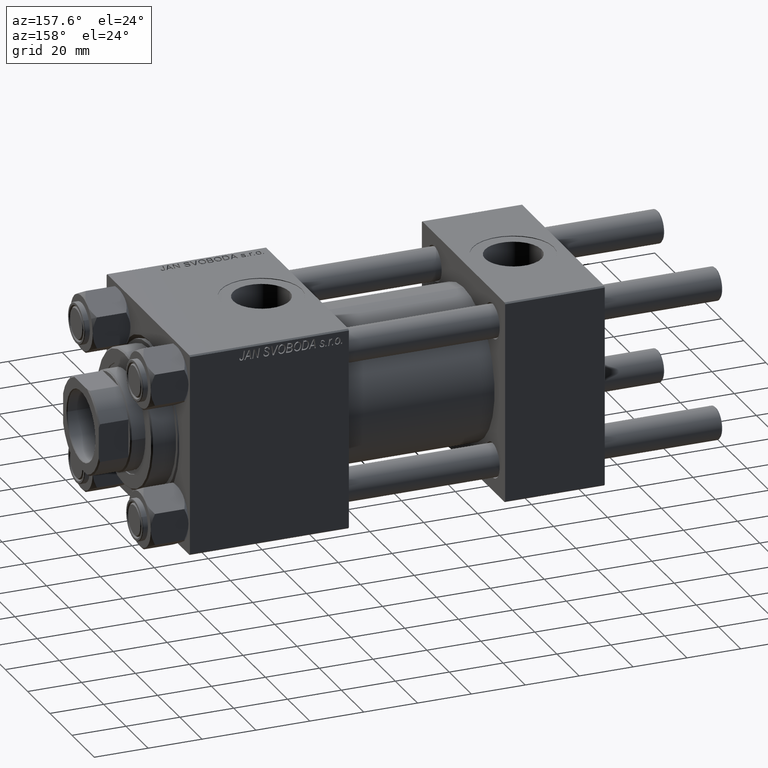
[diagram: clean part render]
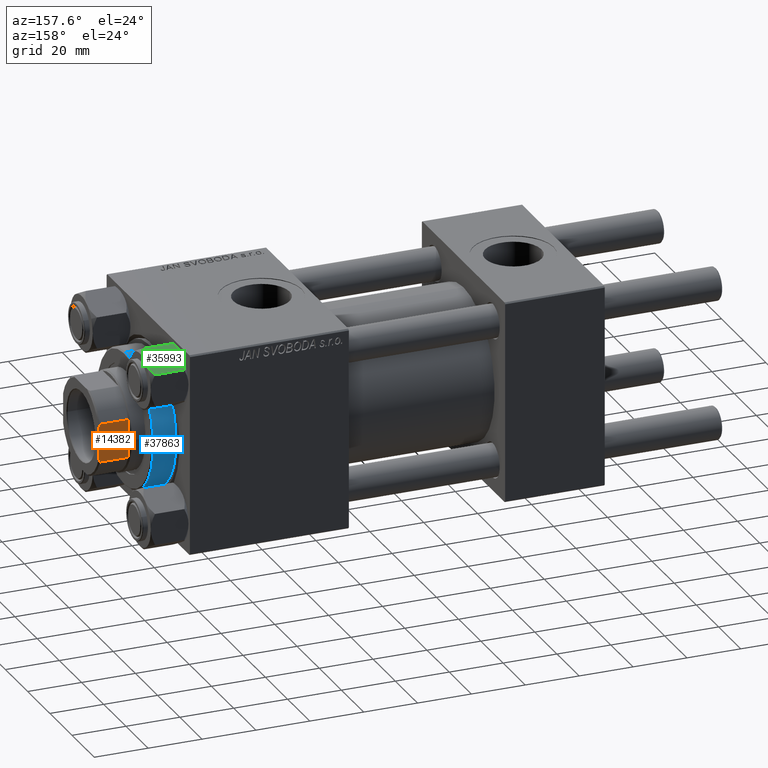
[diagram: same view with three faces highlighted in distinct colors, each labeled with its STEP entity id]
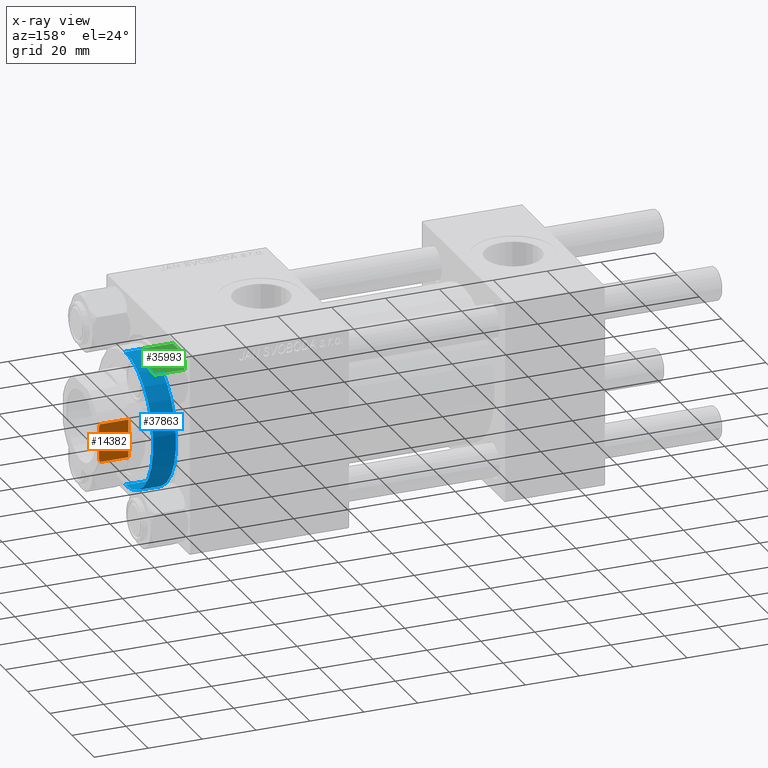
[diagram: x-ray of the same camera — body ghosted, the three highlighted faces saturated]
A machine part, auxiliary view with three faces highlighted in distinct colors.
The next image is the same camera in x-ray (body ghosted, the three faces saturated) — at least one of them is partly hidden behind the body in this view.
Their STEP definitions:

[orange] entity #14382 — the highlighted planar face has unit normal (-0, -1, -0).
#198 = DIRECTION ( 'NONE',  ( 0.000000000000000000, -1.000000000000000000, 0.000000000000000000 ) ) ;
#1245 = ORIENTED_EDGE ( 'NONE', *, *, #49039, .F. ) ;
#3132 = VECTOR ( 'NONE', #12706, 1000.000000000000000 ) ;
#4084 = VERTEX_POINT ( 'NONE', #35443 ) ;
#5725 = CARTESIAN_POINT ( 'NONE',  ( -16.00000000000000000, 6.645462757301157097, 141.6795515649600361 ) ) ;
#6185 = FACE_OUTER_BOUND ( 'NONE', #41848, .T. ) ;
#6350 = VERTEX_POINT ( 'NONE', #9192 ) ;
#6418 = AXIS2_PLACEMENT_3D ( 'NONE', #10368, #9330, #42308 ) ;
#7051 = CARTESIAN_POINT ( 'NONE',  ( -16.00000000000000000, -6.197659614356052060, 141.8468915343184165 ) ) ;
#9192 = CARTESIAN_POINT ( 'NONE',  ( -16.00000000000000000, -7.088723439378919799, 131.0000000000000284 ) ) ;
#9330 = DIRECTION ( 'NONE',  ( 1.000000000000000000, 0.000000000000000000, -0.000000000000000000 ) ) ;
#9501 = VERTEX_POINT ( 'NONE', #42598 ) ;
#10368 = CARTESIAN_POINT ( 'NONE',  ( -16.00000000000000000, 16.00000000000000000, 142.0000000000000284 ) ) ;
#11022 = B_SPLINE_CURVE_WITH_KNOTS ( 'NONE', 3,
 ( #45250, #14371, #5725, #26136 ),
 .UNSPECIFIED., .F., .F.,
 ( 4, 4 ),
 ( 8.673617379884035472E-19, 0.001434143729551021944 ),
 .UNSPECIFIED. ) ;
#12706 = DIRECTION ( 'NONE',  ( -0.000000000000000000, -0.000000000000000000, 1.000000000000000000 ) ) ;
#13153 = VECTOR ( 'NONE', #198, 1000.000000000000000 ) ;
#14371 = CARTESIAN_POINT ( 'NONE',  ( -16.00000000000000000, 6.197659614356096469, 141.8468915343184165 ) ) ;
#14382 = ADVANCED_FACE ( 'NONE', ( #6185 ), #29492, .F. ) ;
#14613 = EDGE_CURVE ( 'NONE', #6350, #38825, #36492, .T. ) ;
#17538 = CARTESIAN_POINT ( 'NONE',  ( -15.99999999999999645, 7.088723439378926905, 131.0000000000000284 ) ) ;
#18489 = ORIENTED_EDGE ( 'NONE', *, *, #36903, .T. ) ;
#18746 = ORIENTED_EDGE ( 'NONE', *, *, #20676, .F. ) ;
#18908 = EDGE_CURVE ( 'NONE', #38825, #22247, #43173, .T. ) ;
#19310 = ORIENTED_EDGE ( 'NONE', *, *, #48040, .T. ) ;
#19587 = CARTESIAN_POINT ( 'NONE',  ( -16.00000000000000000, 16.00000000000000000, 142.0000000000000284 ) ) ;
#20043 = CARTESIAN_POINT ( 'NONE',  ( -15.99999999999999645, 7.088723439378923352, -0.001000000000001000089 ) ) ;
#20676 = EDGE_CURVE ( 'NONE', #47562, #4084, #36270, .T. ) ;
#21734 = CARTESIAN_POINT ( 'NONE',  ( -16.00000000000000000, -5.744562646538022399, 142.0000000000000284 ) ) ;
#22247 = VERTEX_POINT ( 'NONE', #21734 ) ;
#22985 = LINE ( 'NONE', #19587, #36885 ) ;
#23266 = CARTESIAN_POINT ( 'NONE',  ( -16.00000000000000000, -5.744562646538022399, 142.0000000000000284 ) ) ;
#23679 = CARTESIAN_POINT ( 'NONE',  ( -16.00000000000000000, -7.088723439378919799, -0.001000000000001000089 ) ) ;
#23932 = DIRECTION ( 'NONE',  ( -0.000000000000000000, -0.000000000000000000, 1.000000000000000000 ) ) ;
#26136 = CARTESIAN_POINT ( 'NONE',  ( -15.99999999999999645, 7.088723439378923352, 141.5000000000000284 ) ) ;
#26934 = CARTESIAN_POINT ( 'NONE',  ( -16.00000000000000000, -6.645462757301120682, 141.6795515649600077 ) ) ;
#27321 = VECTOR ( 'NONE', #23932, 1000.000000000000000 ) ;
#29492 = PLANE ( 'NONE',  #6418 ) ;
#30434 = CARTESIAN_POINT ( 'NONE',  ( -16.00000000000000000, -7.088723439378919799, 141.5000000000000284 ) ) ;
#32150 = CARTESIAN_POINT ( 'NONE',  ( -16.00000000000000000, 16.00000000000000000, 131.0000000000000000 ) ) ;
#32663 = LINE ( 'NONE', #32150, #13153 ) ;
#33126 = ORIENTED_EDGE ( 'NONE', *, *, #14613, .T. ) ;
#35443 = CARTESIAN_POINT ( 'NONE',  ( -15.99999999999999645, 7.088723439378923352, 141.5000000000000284 ) ) ;
#36270 = LINE ( 'NONE', #20043, #3132 ) ;
#36492 = LINE ( 'NONE', #23679, #27321 ) ;
#36885 = VECTOR ( 'NONE', #38971, 1000.000000000000000 ) ;
#36903 = EDGE_CURVE ( 'NONE', #47562, #6350, #32663, .T. ) ;
#38825 = VERTEX_POINT ( 'NONE', #30434 ) ;
#38971 = DIRECTION ( 'NONE',  ( 0.000000000000000000, -1.000000000000000000, 0.000000000000000000 ) ) ;
#41848 = EDGE_LOOP ( 'NONE', ( #33126, #45067, #1245, #19310, #18746, #18489 ) ) ;
#42308 = DIRECTION ( 'NONE',  ( -0.000000000000000000, 0.000000000000000000, -1.000000000000000000 ) ) ;
#42598 = CARTESIAN_POINT ( 'NONE',  ( -16.00000000000000000, 5.744562646538085460, 142.0000000000000284 ) ) ;
#43173 = B_SPLINE_CURVE_WITH_KNOTS ( 'NONE', 3,
 ( #46833, #26934, #7051, #23266 ),
 .UNSPECIFIED., .F., .F.,
 ( 4, 4 ),
 ( 0.000000000000000000, 0.001434143729551075504 ),
 .UNSPECIFIED. ) ;
#45067 = ORIENTED_EDGE ( 'NONE', *, *, #18908, .T. ) ;
#45250 = CARTESIAN_POINT ( 'NONE',  ( -16.00000000000000000, 5.744562646538085460, 142.0000000000000284 ) ) ;
#46833 = CARTESIAN_POINT ( 'NONE',  ( -16.00000000000000000, -7.088723439378919799, 141.5000000000000284 ) ) ;
#47562 = VERTEX_POINT ( 'NONE', #17538 ) ;
#48040 = EDGE_CURVE ( 'NONE', #9501, #4084, #11022, .T. ) ;
#49039 = EDGE_CURVE ( 'NONE', #9501, #22247, #22985, .T. ) ;

[blue] entity #37863 — the highlighted cylindrical surface (partial cylindrical patch) has radius 25 mm, axis along (-1, -0, 0).
#1337 = DIRECTION ( 'NONE',  ( -0.000000000000000000, -0.000000000000000000, -1.000000000000000000 ) ) ;
#3348 = AXIS2_PLACEMENT_3D ( 'NONE', #17443, #45703, #49368 ) ;
#5263 = LINE ( 'NONE', #21249, #6814 ) ;
#5894 = ORIENTED_EDGE ( 'NONE', *, *, #49103, .F. ) ;
#6814 = VECTOR ( 'NONE', #1337, 1000.000000000000000 ) ;
#8583 = CYLINDRICAL_SURFACE ( 'NONE', #11509, 25.00000000000000000 ) ;
#10009 = ORIENTED_EDGE ( 'NONE', *, *, #28187, .T. ) ;
#11462 = CARTESIAN_POINT ( 'NONE',  ( -25.00000000000000000, 0.000000000000000000, 37.69999999999999574 ) ) ;
#11509 = AXIS2_PLACEMENT_3D ( 'NONE', #45211, #20360, #49400 ) ;
#11746 = VERTEX_POINT ( 'NONE', #50218 ) ;
#12565 = ORIENTED_EDGE ( 'NONE', *, *, #50535, .T. ) ;
#14883 = LINE ( 'NONE', #11462, #31014 ) ;
#16821 = CARTESIAN_POINT ( 'NONE',  ( 25.00000000000000000, 3.061616997868383043E-15, 37.20000000000001705 ) ) ;
#17440 = VERTEX_POINT ( 'NONE', #46700 ) ;
#17443 = CARTESIAN_POINT ( 'NONE',  ( 0.000000000000000000, 0.000000000000000000, 28.69999999999999929 ) ) ;
#17521 = CARTESIAN_POINT ( 'NONE',  ( -25.00000000000000000, 0.000000000000000000, 28.69999999999999929 ) ) ;
#18464 = VERTEX_POINT ( 'NONE', #16821 ) ;
#20360 = DIRECTION ( 'NONE',  ( -0.000000000000000000, -0.000000000000000000, -1.000000000000000000 ) ) ;
#21249 = CARTESIAN_POINT ( 'NONE',  ( 25.00000000000000000, 3.061616997868383043E-15, 37.69999999999999574 ) ) ;
#25275 = ORIENTED_EDGE ( 'NONE', *, *, #26379, .T. ) ;
#26379 = EDGE_CURVE ( 'NONE', #17440, #48958, #46826, .T. ) ;
#28187 = EDGE_CURVE ( 'NONE', #18464, #17440, #5263, .T. ) ;
#31014 = VECTOR ( 'NONE', #31891, 1000.000000000000000 ) ;
#31595 = EDGE_LOOP ( 'NONE', ( #12565, #10009, #25275, #5894 ) ) ;
#31891 = DIRECTION ( 'NONE',  ( -0.000000000000000000, -0.000000000000000000, -1.000000000000000000 ) ) ;
#32158 = DIRECTION ( 'NONE',  ( 0.000000000000000000, 0.000000000000000000, -1.000000000000000000 ) ) ;
#34361 = DIRECTION ( 'NONE',  ( 1.000000000000000000, 0.000000000000000000, 0.000000000000000000 ) ) ;
#37863 = ADVANCED_FACE ( 'NONE', ( #48373 ), #8583, .T. ) ;
#43933 = CARTESIAN_POINT ( 'NONE',  ( 0.000000000000000000, 0.000000000000000000, 37.20000000000001705 ) ) ;
#45211 = CARTESIAN_POINT ( 'NONE',  ( 0.000000000000000000, 0.000000000000000000, 37.69999999999999574 ) ) ;
#45703 = DIRECTION ( 'NONE',  ( 0.000000000000000000, 0.000000000000000000, 1.000000000000000000 ) ) ;
#46700 = CARTESIAN_POINT ( 'NONE',  ( 25.00000000000000000, 3.061616997868383043E-15, 28.69999999999999929 ) ) ;
#46826 = CIRCLE ( 'NONE', #3348, 25.00000000000000000 ) ;
#46923 = CIRCLE ( 'NONE', #47790, 25.00000000000000000 ) ;
#47790 = AXIS2_PLACEMENT_3D ( 'NONE', #43933, #32158, #34361 ) ;
#48373 = FACE_OUTER_BOUND ( 'NONE', #31595, .T. ) ;
#48958 = VERTEX_POINT ( 'NONE', #17521 ) ;
#49103 = EDGE_CURVE ( 'NONE', #11746, #48958, #14883, .T. ) ;
#49368 = DIRECTION ( 'NONE',  ( 1.000000000000000000, 0.000000000000000000, 0.000000000000000000 ) ) ;
#49400 = DIRECTION ( 'NONE',  ( -1.000000000000000000, 0.000000000000000000, 0.000000000000000000 ) ) ;
#50218 = CARTESIAN_POINT ( 'NONE',  ( -25.00000000000000000, 0.000000000000000000, 37.20000000000001705 ) ) ;
#50535 = EDGE_CURVE ( 'NONE', #11746, #18464, #46923, .T. ) ;

[green] entity #35993 — the highlighted planar face has unit normal (-0, -0.5, -0.866).
#974 = CARTESIAN_POINT ( 'NONE',  ( 4.908816193182378385, 10.06321519197518199, -12.89380709538398406 ) ) ;
#2855 = EDGE_CURVE ( 'NONE', #45167, #41879, #36820, .T. ) ;
#4052 = VECTOR ( 'NONE', #47410, 1000.000000000000000 ) ;
#4437 = CARTESIAN_POINT ( 'NONE',  ( -5.810000000000003162, 10.06321519197517667, -1.556784808024824107 ) ) ;
#4570 = CARTESIAN_POINT ( 'NONE',  ( 5.359707691559670195, 10.06321519197518199, -1.331638653804663619 ) ) ;
#4660 = EDGE_CURVE ( 'NONE', #47831, #10297, #42349, .T. ) ;
#4700 = CARTESIAN_POINT ( 'NONE',  ( -3.960942496020607884, 10.06321519197517844, -0.7115728323610508443 ) ) ;
#4745 = DIRECTION ( 'NONE',  ( 5.971509383741162381E-16, -1.000000000000000000, 0.000000000000000000 ) ) ;
#4802 = EDGE_CURVE ( 'NONE', #10297, #5793, #29267, .T. ) ;
#4898 = CARTESIAN_POINT ( 'NONE',  ( 3.960942496020599002, 10.06321519197518199, -13.28842716763894671 ) ) ;
#5793 = VERTEX_POINT ( 'NONE', #48378 ) ;
#6486 = ORIENTED_EDGE ( 'NONE', *, *, #4660, .F. ) ;
#6943 = CARTESIAN_POINT ( 'NONE',  ( -6.009258394948640858E-15, 10.06321519197518022, 0.000000000000000000 ) ) ;
#7804 = CARTESIAN_POINT ( 'NONE',  ( -2.013954290287971460, 10.06321519197518022, -13.84298883202399466 ) ) ;
#10297 = VERTEX_POINT ( 'NONE', #51226 ) ;
#11215 = DIRECTION ( 'NONE',  ( -0.000000000000000000, -0.000000000000000000, 1.000000000000000000 ) ) ;
#11274 = VERTEX_POINT ( 'NONE', #46598 ) ;
#11474 = CARTESIAN_POINT ( 'NONE',  ( -5.359707691559678189, 10.06321519197518022, -12.66836134619534171 ) ) ;
#12244 = CARTESIAN_POINT ( 'NONE',  ( 0.2543996698847451055, 10.06321519197518199, -13.99999999999999289 ) ) ;
#12767 = CARTESIAN_POINT ( 'NONE',  ( 0.5112014849988854026, 10.06321519197518022, -13.99019602057108003 ) ) ;
#15953 = CARTESIAN_POINT ( 'NONE',  ( -5.810000000000004050, 10.06321519197517667, -12.44321519197517745 ) ) ;
#16360 = CARTESIAN_POINT ( 'NONE',  ( -6.009258394948640858E-15, 10.06321519197518022, 0.000000000000000000 ) ) ;
#16750 = CARTESIAN_POINT ( 'NONE',  ( -4.908816193182384602, 10.06321519197518022, -1.106192904616017048 ) ) ;
#16949 = CARTESIAN_POINT ( 'NONE',  ( 5.809999999999994280, 10.06321519197518377, -12.44321519197517389 ) ) ;
#17057 = DIRECTION ( 'NONE',  ( 1.000000000000000000, 5.971509383741162381E-16, 0.000000000000000000 ) ) ;
#17156 = EDGE_LOOP ( 'NONE', ( #6486, #28159, #29326, #51396, #22588, #35429 ) ) ;
#18822 = CARTESIAN_POINT ( 'NONE',  ( -5.810000000000004050, 10.06321519197517667, -12.44321519197517745 ) ) ;
#19338 = CARTESIAN_POINT ( 'NONE',  ( -3.958929922320423067, 10.06321519197517489, -13.25786014976459626 ) ) ;
#19592 = LINE ( 'NONE', #35050, #26851 ) ;
#20548 = CARTESIAN_POINT ( 'NONE',  ( 2.013954290287958138, 10.06321519197518377, -0.1570111679760076706 ) ) ;
#20729 = PLANE ( 'NONE',  #41283 ) ;
#22588 = ORIENTED_EDGE ( 'NONE', *, *, #49658, .F. ) ;
#23876 = CARTESIAN_POINT ( 'NONE',  ( -5.810000000000003162, 10.06321519197517667, -14.00000000000000000 ) ) ;
#24576 = CARTESIAN_POINT ( 'NONE',  ( 5.809999999999995168, 10.06321519197518377, -1.556784808024826106 ) ) ;
#24596 = CARTESIAN_POINT ( 'NONE',  ( -0.2543996698847555971, 10.06321519197517844, -8.687169907040107433E-15 ) ) ;
#24792 = CARTESIAN_POINT ( 'NONE',  ( 1.772424303831120707, 10.06321519197518022, -13.86611290782775541 ) ) ;
#26851 = VECTOR ( 'NONE', #11215, 1000.000000000000000 ) ;
#27427 = CARTESIAN_POINT ( 'NONE',  ( -4.900668367960797411, 10.06321519197517667, -12.87844331629021966 ) ) ;
#28159 = ORIENTED_EDGE ( 'NONE', *, *, #43727, .T. ) ;
#28529 = CARTESIAN_POINT ( 'NONE',  ( -1.772424303831134917, 10.06321519197518022, -0.1338870921722490892 ) ) ;
#28579 = FACE_OUTER_BOUND ( 'NONE', #17156, .T. ) ;
#29267 = B_SPLINE_CURVE_WITH_KNOTS ( 'NONE', 3,
 ( #48117, #12244, #12767, #44693, #24792, #40773, #4898, #974, #16949 ),
 .UNSPECIFIED., .F., .F.,
 ( 4, 2, 1, 2, 4 ),
 ( 0.02074012592819902273, 0.02149589804477578664, 0.02225167016135255055, 0.02376321439450608183, 0.02678630286081314094 ),
 .UNSPECIFIED. ) ;
#29326 = ORIENTED_EDGE ( 'NONE', *, *, #42599, .F. ) ;
#31637 = CARTESIAN_POINT ( 'NONE',  ( -1.020132157807628781, 10.06321519197518022, -13.99999999999999467 ) ) ;
#32469 = CARTESIAN_POINT ( 'NONE',  ( -1.018274738099091303, 10.06321519197518022, -0.04822742080071992093 ) ) ;
#33196 = CARTESIAN_POINT ( 'NONE',  ( -5.810000000000003162, 10.06321519197517667, -14.00000000000000000 ) ) ;
#35050 = CARTESIAN_POINT ( 'NONE',  ( 5.809999999999995168, 10.06321519197518377, -14.00000000000000000 ) ) ;
#35429 = ORIENTED_EDGE ( 'NONE', *, *, #4802, .F. ) ;
#35993 = ADVANCED_FACE ( 'NONE', ( #28579 ), #20729, .F. ) ;
#36517 = CARTESIAN_POINT ( 'NONE',  ( 1.020132157807618345, 10.06321519197518022, -8.626183534837794653E-15 ) ) ;
#36820 = B_SPLINE_CURVE_WITH_KNOTS ( 'NONE', 3,
 ( #47792, #4570, #51711, #39686, #48051, #20548, #36517, #16360 ),
 .UNSPECIFIED., .F., .F.,
 ( 4, 2, 2, 4 ),
 ( 0.01467889604968878464, 0.01619420351931634416, 0.01770951098894390369, 0.02074012592819901926 ),
 .UNSPECIFIED. ) ;
#39686 = CARTESIAN_POINT ( 'NONE',  ( 3.958929922320414185, 10.06321519197518377, -0.7421398502354088489 ) ) ;
#40773 = CARTESIAN_POINT ( 'NONE',  ( 2.508586450168036386, 10.06321519197518199, -13.70242473679676287 ) ) ;
#41283 = AXIS2_PLACEMENT_3D ( 'NONE', #23876, #4745, #17057 ) ;
#41879 = VERTEX_POINT ( 'NONE', #6943 ) ;
#42349 = B_SPLINE_CURVE_WITH_KNOTS ( 'NONE', 3,
 ( #18822, #11474, #27427, #19338, #43415, #7804, #31637, #43927 ),
 .UNSPECIFIED., .F., .F.,
 ( 4, 2, 2, 4 ),
 ( 0.01467889604968878811, 0.01619420351931634763, 0.01770951098894390716, 0.02074012592819902273 ),
 .UNSPECIFIED. ) ;
#42599 = EDGE_CURVE ( 'NONE', #41879, #11274, #48158, .T. ) ;
#43415 = CARTESIAN_POINT ( 'NONE',  ( -3.474497094393259378, 10.06321519197517844, -13.42730390989571809 ) ) ;
#43727 = EDGE_CURVE ( 'NONE', #47831, #11274, #48187, .T. ) ;
#43927 = CARTESIAN_POINT ( 'NONE',  ( -6.009258394948640858E-15, 10.06321519197518022, -14.00000000000000000 ) ) ;
#44693 = CARTESIAN_POINT ( 'NONE',  ( 1.018274738099081977, 10.06321519197517844, -13.95177257919928415 ) ) ;
#44753 = CARTESIAN_POINT ( 'NONE',  ( -0.5112014849988953946, 10.06321519197518199, -0.009803979428924322267 ) ) ;
#45167 = VERTEX_POINT ( 'NONE', #24576 ) ;
#46598 = CARTESIAN_POINT ( 'NONE',  ( -5.810000000000003162, 10.06321519197517667, -1.556784808024824107 ) ) ;
#47410 = DIRECTION ( 'NONE',  ( -0.000000000000000000, -0.000000000000000000, 1.000000000000000000 ) ) ;
#47792 = CARTESIAN_POINT ( 'NONE',  ( 5.809999999999995168, 10.06321519197518377, -1.556784808024826106 ) ) ;
#47831 = VERTEX_POINT ( 'NONE', #15953 ) ;
#48051 = CARTESIAN_POINT ( 'NONE',  ( 3.474497094393246055, 10.06321519197518199, -0.5726960901042849050 ) ) ;
#48117 = CARTESIAN_POINT ( 'NONE',  ( -6.009258394948640858E-15, 10.06321519197518022, -14.00000000000000000 ) ) ;
#48158 = B_SPLINE_CURVE_WITH_KNOTS ( 'NONE', 3,
 ( #48429, #24596, #44753, #32469, #28529, #48944, #4700, #16750, #4437 ),
 .UNSPECIFIED., .F., .F.,
 ( 4, 2, 1, 2, 4 ),
 ( 0.02074012592819901926, 0.02149589804477578317, 0.02225167016135255055, 0.02376321439450607836, 0.02678630286081313747 ),
 .UNSPECIFIED. ) ;
#48187 = LINE ( 'NONE', #33196, #4052 ) ;
#48378 = CARTESIAN_POINT ( 'NONE',  ( 5.809999999999994280, 10.06321519197518377, -12.44321519197517389 ) ) ;
#48429 = CARTESIAN_POINT ( 'NONE',  ( -6.009258394948640858E-15, 10.06321519197518022, 0.000000000000000000 ) ) ;
#48944 = CARTESIAN_POINT ( 'NONE',  ( -2.508586450168046156, 10.06321519197518022, -0.2975752632032391820 ) ) ;
#49658 = EDGE_CURVE ( 'NONE', #5793, #45167, #19592, .T. ) ;
#51226 = CARTESIAN_POINT ( 'NONE',  ( -6.009258394948640858E-15, 10.06321519197518022, -14.00000000000000000 ) ) ;
#51396 = ORIENTED_EDGE ( 'NONE', *, *, #2855, .F. ) ;
#51711 = CARTESIAN_POINT ( 'NONE',  ( 4.900668367960789418, 10.06321519197518732, -1.121556683709783231 ) ) ;